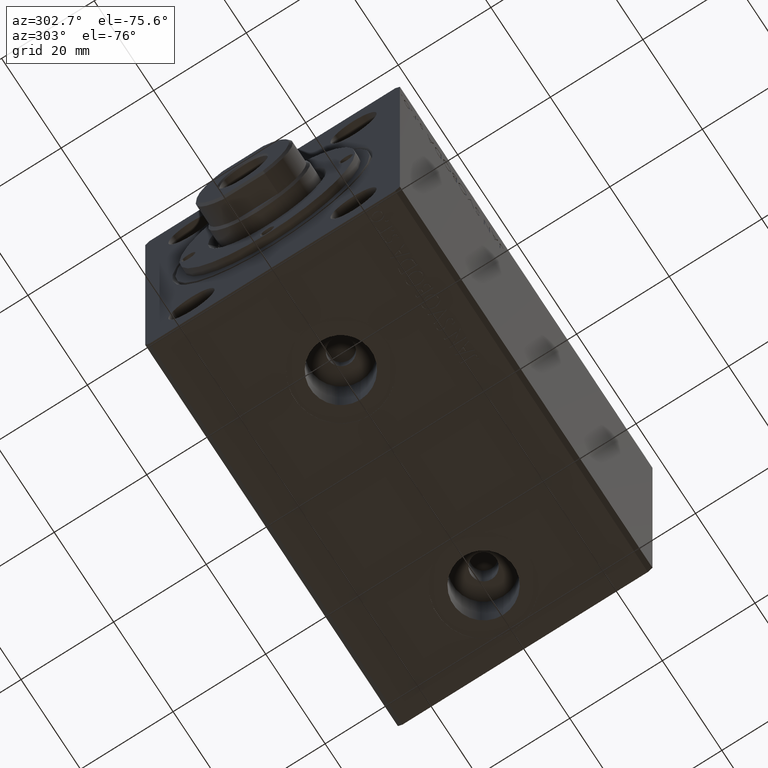
[diagram: clean part render]
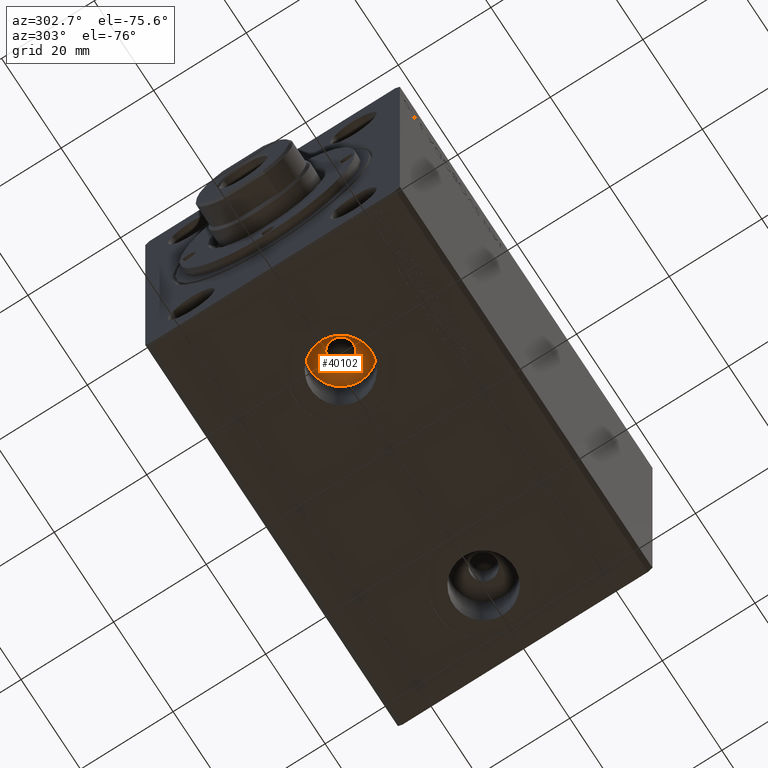
[diagram: same view with one face highlighted and labeled with its STEP entity id]
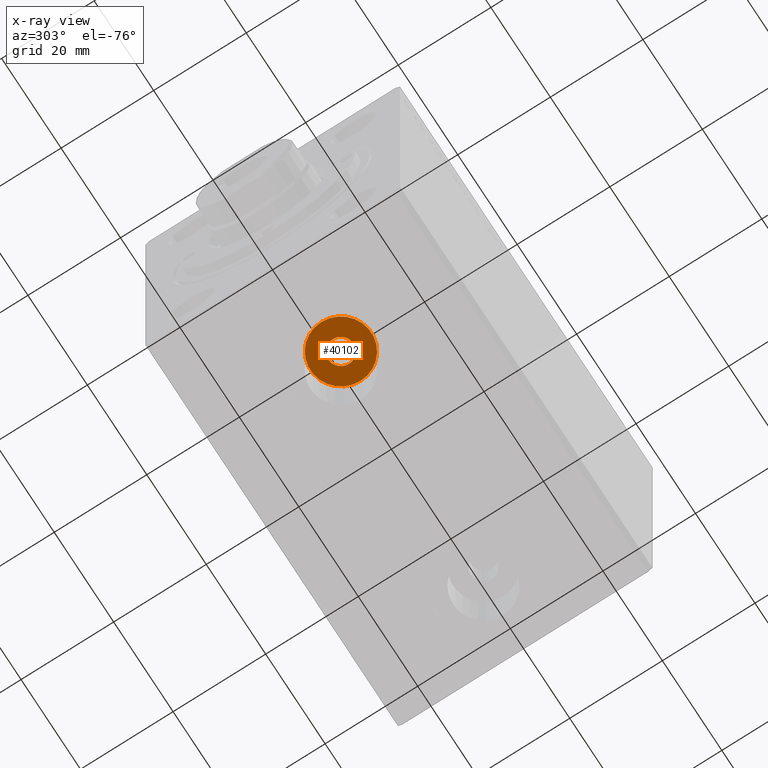
[diagram: x-ray of the same camera — body ghosted, the highlighted face saturated]
A machine part, auxiliary view. The second image highlights one B-rep face of the part: STEP entity #40102.
The next image is the same camera in x-ray: the body ghosted, the highlighted face saturated — about 0% of this face is hidden behind the body in this view.
In plain terms, the highlighted planar face has unit normal (0, 0, -1).
Its self-contained STEP definition (entity closure, byte-faithful):
#179 = DIRECTION ( 'NONE',  ( -1.000000000000000000, 0.000000000000000000, 0.000000000000000000 ) ) ;
#1075 = AXIS2_PLACEMENT_3D ( 'NONE', #24040, #3304, #179 ) ;
#3304 = DIRECTION ( 'NONE',  ( 0.000000000000000000, 0.000000000000000000, -1.000000000000000000 ) ) ;
#3371 = AXIS2_PLACEMENT_3D ( 'NONE', #34729, #10186, #6851 ) ;
#3424 = EDGE_CURVE ( 'NONE', #39734, #4770, #23352, .T. ) ;
#3812 = ORIENTED_EDGE ( 'NONE', *, *, #17243, .F. ) ;
#4770 = VERTEX_POINT ( 'NONE', #8464 ) ;
#5330 = CIRCLE ( 'NONE', #1075, 2.749999999999999112 ) ;
#6851 = DIRECTION ( 'NONE',  ( -1.000000000000000000, 0.000000000000000000, -0.000000000000000000 ) ) ;
#8297 = EDGE_LOOP ( 'NONE', ( #19678, #41073 ) ) ;
#8464 = CARTESIAN_POINT ( 'NONE',  ( 16.41999999999999815, -3.533115609439951465E-15, -23.79999999999998650 ) ) ;
#9476 = CARTESIAN_POINT ( 'NONE',  ( 23.00000000000000000, -3.533115609439951465E-15, -23.79999999999998650 ) ) ;
#10186 = DIRECTION ( 'NONE',  ( 0.000000000000000000, 0.000000000000000000, -1.000000000000000000 ) ) ;
#10228 = DIRECTION ( 'NONE',  ( -1.000000000000000000, 0.000000000000000000, 0.000000000000000000 ) ) ;
#10418 = FACE_OUTER_BOUND ( 'NONE', #8297, .T. ) ;
#10852 = FACE_BOUND ( 'NONE', #28390, .T. ) ;
#12803 = DIRECTION ( 'NONE',  ( -1.000000000000000000, 0.000000000000000000, 0.000000000000000000 ) ) ;
#13042 = DIRECTION ( 'NONE',  ( 0.000000000000000000, 0.000000000000000000, -1.000000000000000000 ) ) ;
#15955 = DIRECTION ( 'NONE',  ( -1.000000000000000000, 0.000000000000000000, 0.000000000000000000 ) ) ;
#16159 = CARTESIAN_POINT ( 'NONE',  ( 23.00000000000000000, -3.533115609439951465E-15, -23.79999999999998650 ) ) ;
#16738 = AXIS2_PLACEMENT_3D ( 'NONE', #23602, #26960, #10228 ) ;
#17243 = EDGE_CURVE ( 'NONE', #37502, #23983, #35970, .T. ) ;
#19678 = ORIENTED_EDGE ( 'NONE', *, *, #36172, .T. ) ;
#22303 = CARTESIAN_POINT ( 'NONE',  ( 25.75000000000000000, -3.196337739674429808E-15, -23.79999999999998650 ) ) ;
#23186 = CIRCLE ( 'NONE', #32460, 6.580000000000002736 ) ;
#23352 = CIRCLE ( 'NONE', #41195, 6.580000000000002736 ) ;
#23602 = CARTESIAN_POINT ( 'NONE',  ( 23.00000000000000000, -3.533115609439951465E-15, -23.79999999999998650 ) ) ;
#23983 = VERTEX_POINT ( 'NONE', #22303 ) ;
#24040 = CARTESIAN_POINT ( 'NONE',  ( 23.00000000000000000, -3.533115609439951465E-15, -23.79999999999998650 ) ) ;
#26521 = CARTESIAN_POINT ( 'NONE',  ( 29.58000000000000185, -2.727298015600992818E-15, -23.79999999999998650 ) ) ;
#26960 = DIRECTION ( 'NONE',  ( 0.000000000000000000, 0.000000000000000000, -1.000000000000000000 ) ) ;
#28390 = EDGE_LOOP ( 'NONE', ( #3812, #33408 ) ) ;
#32460 = AXIS2_PLACEMENT_3D ( 'NONE', #16159, #43384, #12803 ) ;
#33408 = ORIENTED_EDGE ( 'NONE', *, *, #34075, .F. ) ;
#34075 = EDGE_CURVE ( 'NONE', #23983, #37502, #5330, .T. ) ;
#34729 = CARTESIAN_POINT ( 'NONE',  ( 23.00000000000000000, -3.533115609439951465E-15, -23.79999999999998650 ) ) ;
#35970 = CIRCLE ( 'NONE', #16738, 2.749999999999999112 ) ;
#36172 = EDGE_CURVE ( 'NONE', #4770, #39734, #23186, .T. ) ;
#37502 = VERTEX_POINT ( 'NONE', #41537 ) ;
#38076 = PLANE ( 'NONE',  #3371 ) ;
#39734 = VERTEX_POINT ( 'NONE', #26521 ) ;
#40102 = ADVANCED_FACE ( 'NONE', ( #10852, #10418 ), #38076, .T. ) ;
#41073 = ORIENTED_EDGE ( 'NONE', *, *, #3424, .T. ) ;
#41195 = AXIS2_PLACEMENT_3D ( 'NONE', #9476, #13042, #15955 ) ;
#41537 = CARTESIAN_POINT ( 'NONE',  ( 20.25000000000000000, -3.533115609439951465E-15, -23.79999999999998650 ) ) ;
#43384 = DIRECTION ( 'NONE',  ( 0.000000000000000000, 0.000000000000000000, -1.000000000000000000 ) ) ;